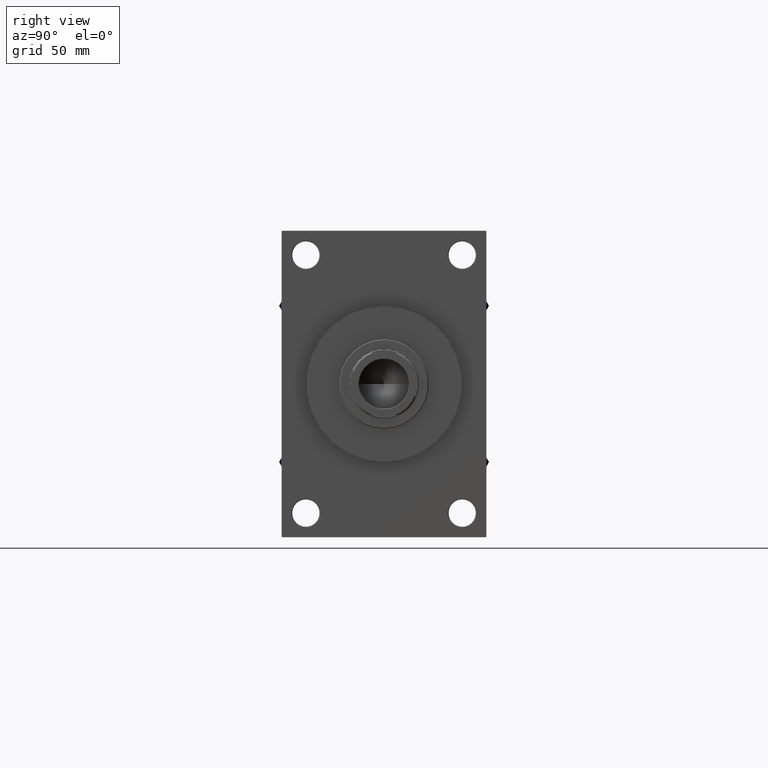
[diagram: clean part render]
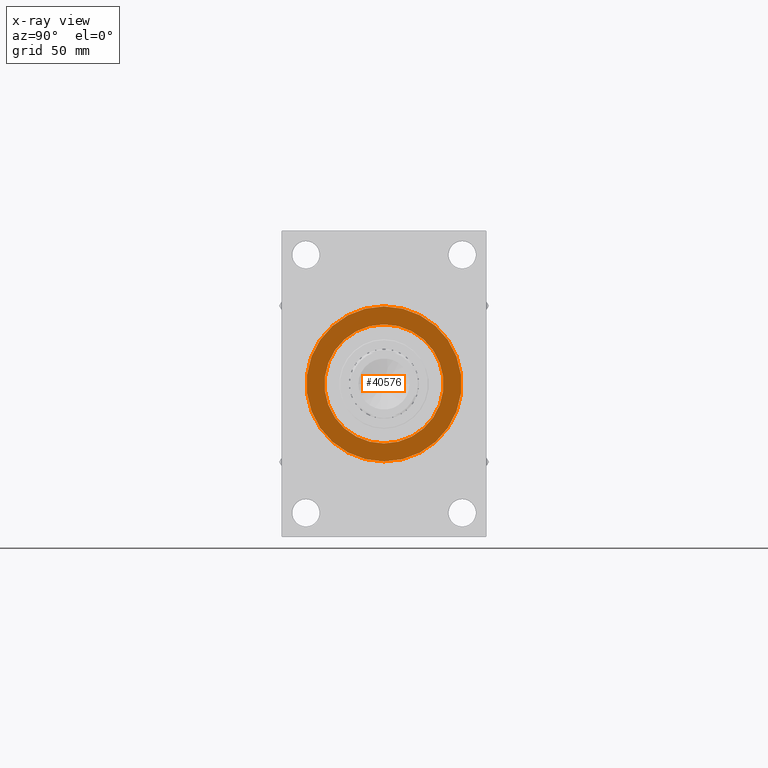
[diagram: x-ray — body ghosted, one internal face saturated and labeled with its STEP entity id]
A machine part, right view, then the same camera in x-ray: the body is ghosted and one INTERNAL B-rep face — a face not visible from any outside direction — is saturated and labeled: STEP entity #40576.
In plain terms, the highlighted planar face has unit normal (-1, 0, 0).
Its self-contained STEP definition (entity closure, byte-faithful):
#145 = AXIS2_PLACEMENT_3D ( 'NONE', #45556, #34419, #30541 ) ;
#1555 = EDGE_LOOP ( 'NONE', ( #29630, #18676 ) ) ;
#2277 = EDGE_CURVE ( 'NONE', #36177, #35225, #16253, .T. ) ;
#2779 = CIRCLE ( 'NONE', #11274, 48.00000000000000711 ) ;
#3725 = CARTESIAN_POINT ( 'NONE',  ( 369.0000000000000000, 0.000000000000000000, 0.000000000000000000 ) ) ;
#4900 = EDGE_CURVE ( 'NONE', #38217, #34928, #28679, .T. ) ;
#8685 = DIRECTION ( 'NONE',  ( 1.000000000000000000, 0.000000000000000000, 0.000000000000000000 ) ) ;
#9122 = CIRCLE ( 'NONE', #38498, 62.50000000000000000 ) ;
#9704 = CARTESIAN_POINT ( 'NONE',  ( 369.0000000000000000, -2.602085213965210642E-15, 0.000000000000000000 ) ) ;
#10982 = PLANE ( 'NONE',  #27783 ) ;
#11274 = AXIS2_PLACEMENT_3D ( 'NONE', #3725, #47516, #14357 ) ;
#11462 = DIRECTION ( 'NONE',  ( -1.000000000000000000, 0.000000000000000000, -0.000000000000000000 ) ) ;
#14357 = DIRECTION ( 'NONE',  ( 0.000000000000000000, 0.000000000000000000, 1.000000000000000000 ) ) ;
#15087 = CARTESIAN_POINT ( 'NONE',  ( 369.0000000000000000, 0.000000000000000000, 0.000000000000000000 ) ) ;
#16253 = CIRCLE ( 'NONE', #35595, 62.50000000000000000 ) ;
#16723 = CARTESIAN_POINT ( 'NONE',  ( 369.0000000000000000, 5.051957280705747162E-15, -62.50000000000000000 ) ) ;
#17651 = EDGE_LOOP ( 'NONE', ( #22711, #41970 ) ) ;
#18466 = FACE_OUTER_BOUND ( 'NONE', #17651, .T. ) ;
#18676 = ORIENTED_EDGE ( 'NONE', *, *, #27288, .F. ) ;
#18708 = FACE_BOUND ( 'NONE', #1555, .T. ) ;
#19551 = DIRECTION ( 'NONE',  ( 0.000000000000000000, 0.000000000000000000, -1.000000000000000000 ) ) ;
#22689 = EDGE_CURVE ( 'NONE', #35225, #36177, #9122, .T. ) ;
#22711 = ORIENTED_EDGE ( 'NONE', *, *, #2277, .F. ) ;
#23189 = CARTESIAN_POINT ( 'NONE',  ( 369.0000000000000000, 0.000000000000000000, -48.00000000000000711 ) ) ;
#26058 = CARTESIAN_POINT ( 'NONE',  ( 369.0000000000000000, 5.878304635907295789E-15, 48.00000000000000711 ) ) ;
#27288 = EDGE_CURVE ( 'NONE', #34928, #38217, #2779, .T. ) ;
#27783 = AXIS2_PLACEMENT_3D ( 'NONE', #15087, #11462, #36633 ) ;
#28679 = CIRCLE ( 'NONE', #145, 48.00000000000000711 ) ;
#29630 = ORIENTED_EDGE ( 'NONE', *, *, #4900, .F. ) ;
#30541 = DIRECTION ( 'NONE',  ( 0.000000000000000000, 0.000000000000000000, 1.000000000000000000 ) ) ;
#32674 = DIRECTION ( 'NONE',  ( 1.000000000000000000, 0.000000000000000000, 0.000000000000000000 ) ) ;
#34419 = DIRECTION ( 'NONE',  ( -1.000000000000000000, 0.000000000000000000, -0.000000000000000000 ) ) ;
#34928 = VERTEX_POINT ( 'NONE', #26058 ) ;
#35225 = VERTEX_POINT ( 'NONE', #16723 ) ;
#35595 = AXIS2_PLACEMENT_3D ( 'NONE', #42082, #8685, #19551 ) ;
#36177 = VERTEX_POINT ( 'NONE', #37057 ) ;
#36633 = DIRECTION ( 'NONE',  ( -0.000000000000000000, 0.000000000000000000, 1.000000000000000000 ) ) ;
#37057 = CARTESIAN_POINT ( 'NONE',  ( 369.0000000000000000, -2.602085213965210642E-15, 62.50000000000000000 ) ) ;
#38217 = VERTEX_POINT ( 'NONE', #23189 ) ;
#38498 = AXIS2_PLACEMENT_3D ( 'NONE', #9704, #32674, #47435 ) ;
#40576 = ADVANCED_FACE ( 'NONE', ( #18708, #18466 ), #10982, .T. ) ;
#41970 = ORIENTED_EDGE ( 'NONE', *, *, #22689, .F. ) ;
#42082 = CARTESIAN_POINT ( 'NONE',  ( 369.0000000000000000, -2.602085213965210642E-15, 0.000000000000000000 ) ) ;
#45556 = CARTESIAN_POINT ( 'NONE',  ( 369.0000000000000000, 0.000000000000000000, 0.000000000000000000 ) ) ;
#47435 = DIRECTION ( 'NONE',  ( 0.000000000000000000, 0.000000000000000000, -1.000000000000000000 ) ) ;
#47516 = DIRECTION ( 'NONE',  ( -1.000000000000000000, 0.000000000000000000, -0.000000000000000000 ) ) ;